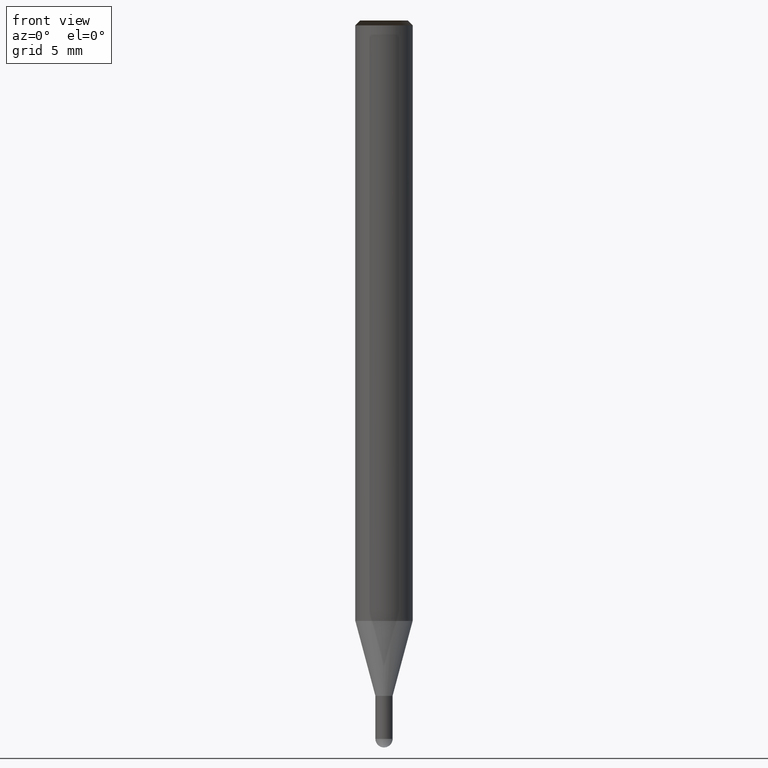
[diagram: clean part render]
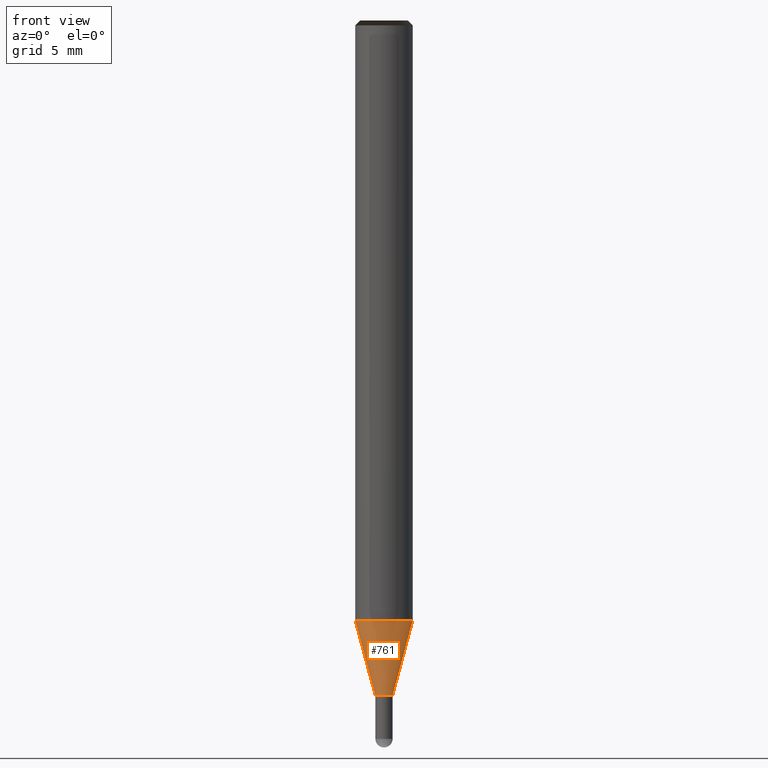
[diagram: same view with one face highlighted and labeled with its STEP entity id]
A machine part, front view. The second image highlights one B-rep face of the part: STEP entity #761.
In plain terms, the highlighted face is a freeform B-spline surface patch.
Its self-contained STEP definition (entity closure, byte-faithful):
#451=CARTESIAN_POINT('',(0.45,0.0,-4.0));
#455=CARTESIAN_POINT('',(-0.45,0.0,-4.0));
#463=CARTESIAN_POINT('',(-0.45,-0.45,-4.0));
#464=CARTESIAN_POINT('',(0.0,-0.45,-4.0));
#465=CARTESIAN_POINT('',(0.45,-0.45,-4.0));
#466=CARTESIAN_POINT('',(1.5,0.0,-0.081346652053));
#470=CARTESIAN_POINT('',(-1.5,0.0,-0.081346652053));
#487=CARTESIAN_POINT('',(-1.5,-1.5,-0.081346652053));
#488=CARTESIAN_POINT('',(0.0,-1.5,-0.081346652053));
#489=CARTESIAN_POINT('',(1.5,-1.5,-0.081346652053));
#742=(
BOUNDED_SURFACE()
B_SPLINE_SURFACE(1,2,(
(#455,#463,#464,#465,#451),
(#470,#487,#488,#489,#466)
), .UNSPECIFIED.,.F.,.F.,.F.)
B_SPLINE_SURFACE_WITH_KNOTS((2,2),(3,2,3),(
0.0,1.0),(
0.0,0.5,1.0), .UNSPECIFIED.)
GEOMETRIC_REPRESENTATION_ITEM()
RATIONAL_B_SPLINE_SURFACE(((1.0,0.707106781187,1.0,0.707106781187,1.0),
(1.0,0.707106781187,1.0,0.707106781187,1.0)
))
REPRESENTATION_ITEM('')
SURFACE()
);
#743=(
BOUNDED_CURVE()
B_SPLINE_CURVE(2,(#451,#465,#464,#463,#455),.UNSPECIFIED.,.F.,.F.)
B_SPLINE_CURVE_WITH_KNOTS((3,2,3),
(0.0,0.5,1.0),.UNSPECIFIED.)
CURVE()
GEOMETRIC_REPRESENTATION_ITEM()
RATIONAL_B_SPLINE_CURVE((1.0,0.707106781187,1.0,0.707106781187,1.0))
REPRESENTATION_ITEM('')
);
#744=(
BOUNDED_CURVE()
B_SPLINE_CURVE(1,(#455,#470),.UNSPECIFIED.,.F.,.F.)
B_SPLINE_CURVE_WITH_KNOTS((2,2),
(0.0,1.0),.UNSPECIFIED.)
CURVE()
GEOMETRIC_REPRESENTATION_ITEM()
RATIONAL_B_SPLINE_CURVE((1.0,1.0))
REPRESENTATION_ITEM('')
);
#745=(
BOUNDED_CURVE()
B_SPLINE_CURVE(2,(#470,#487,#488,#489,#466),.UNSPECIFIED.,.F.,.F.)
B_SPLINE_CURVE_WITH_KNOTS((3,2,3),
(0.0,0.5,1.0),.UNSPECIFIED.)
CURVE()
GEOMETRIC_REPRESENTATION_ITEM()
RATIONAL_B_SPLINE_CURVE((1.0,0.707106781187,1.0,0.707106781187,1.0))
REPRESENTATION_ITEM('')
);
#746=(
BOUNDED_CURVE()
B_SPLINE_CURVE(1,(#466,#451),.UNSPECIFIED.,.F.,.F.)
B_SPLINE_CURVE_WITH_KNOTS((2,2),
(0.0,1.0),.UNSPECIFIED.)
CURVE()
GEOMETRIC_REPRESENTATION_ITEM()
RATIONAL_B_SPLINE_CURVE((1.0,1.0))
REPRESENTATION_ITEM('')
);
#747=VERTEX_POINT('',#451);
#748=VERTEX_POINT('',#455);
#749=VERTEX_POINT('',#466);
#750=VERTEX_POINT('',#470);
#751=EDGE_CURVE('',#747,#748,#743,.T.);
#752=EDGE_CURVE('',#748,#750,#744,.T.);
#753=EDGE_CURVE('',#750,#749,#745,.T.);
#754=EDGE_CURVE('',#749,#747,#746,.T.);
#755=ORIENTED_EDGE('',*,*,#751,.T.);
#756=ORIENTED_EDGE('',*,*,#752,.T.);
#757=ORIENTED_EDGE('',*,*,#753,.T.);
#758=ORIENTED_EDGE('',*,*,#754,.T.);
#759=EDGE_LOOP('',(#755,#756,#757,#758));
#760=FACE_OUTER_BOUND('',#759,.T.);
#761=ADVANCED_FACE('',(#760),#742,.T.);